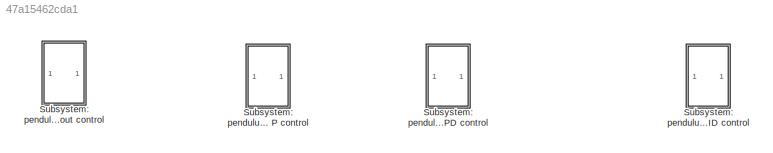
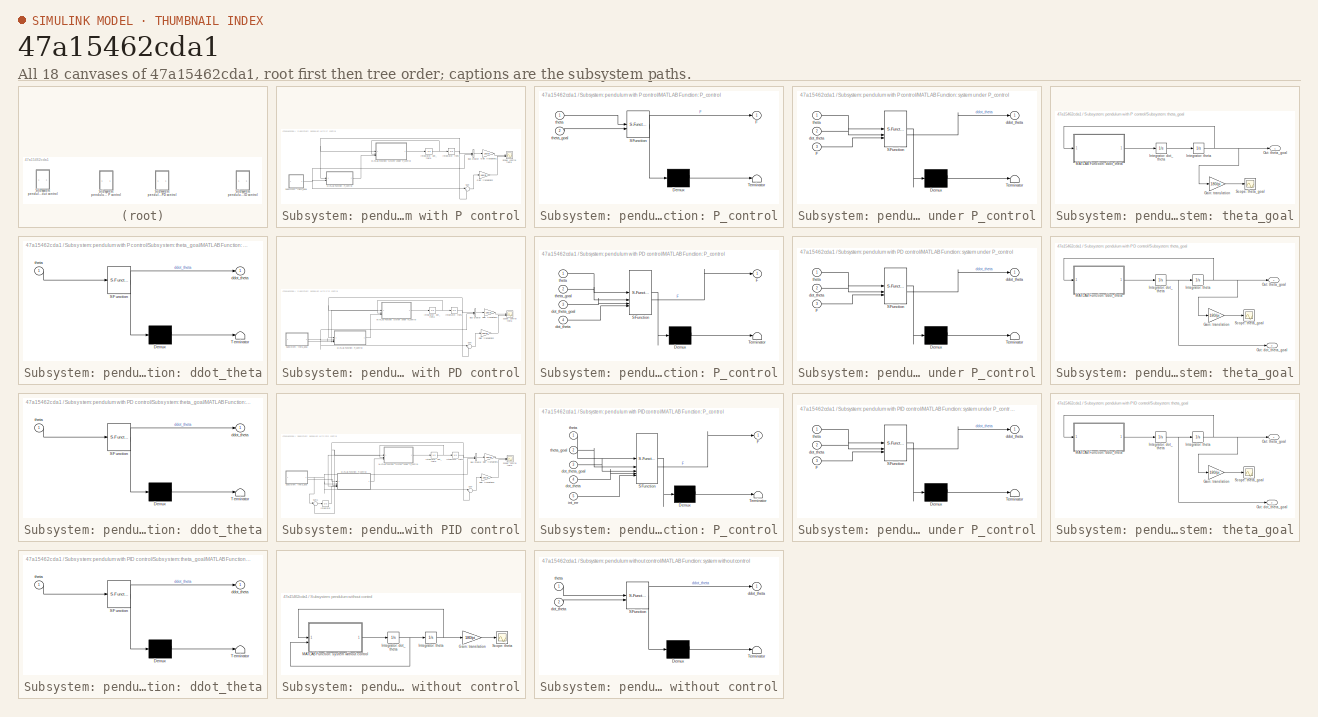
[diagram: thumbnail index - all 18 canvases of the model, root first then tree order]
MODEL slx_47a15462cda1
KIND model
CONFIG AbsTol = auto
CONFIG EnableMultiTasking = off
CONFIG FixedStep = 0.01
CONFIG MaxStep = auto
CONFIG MinStep = auto
CONFIG RelTol = 1e-3
CONFIG SampleTimeConstraint = Unconstrained
CONFIG SolverName = FixedStepAuto
CONFIG StartTime = 0.0
CONFIG StopTime = 10
BLOCK [SubSystem] Subsystem: pendulum with P control
BLOCK [BusCreator] Subsystem: pendulum with P control/Bus Creator
  DisplayOption = bar
  InheritFromInputs = on
  Inputs = 2
BLOCK [Gain] Subsystem: pendulum with P control/Gain: translation1
  Gain = 180/pi
BLOCK [Gain] Subsystem: pendulum with P control/Gain: translation2
  Gain = 180/pi
BLOCK [Integrator] Subsystem: pendulum with P control/Integrator: dot_theta
BLOCK [Integrator] Subsystem: pendulum with P control/Integrator: theta
  InitialCondition = pi/6
BLOCK [SubSystem] Subsystem: pendulum with P control/MATLAB Function: P_control
  ErrorFcn = Stateflow.Translate.translate
  PermitHierarchicalResolution = ExplicitOnly
  SFBlockType = MATLAB Function
  TreatAsAtomicUnit = on
BLOCK [Demux] Subsystem: pendulum with P control/MATLAB Function: P_control/ Demux 
  Outputs = 1
BLOCK [S-Function] Subsystem: pendulum with P control/MATLAB Function: P_control/ SFunction 
  EnableBusSupport = on
  FunctionName = sf_sfun
  PortCounts = [2 2]
  SFcnIsStateOwnerBlock = off
  SFunctionDeploymentMode = off
  Tag = Stateflow S-Function 3
BLOCK [Terminator] Subsystem: pendulum with P control/MATLAB Function: P_control/ Terminator 
BLOCK [Outport] Subsystem: pendulum with P control/MATLAB Function: P_control/F
BLOCK [Inport] Subsystem: pendulum with P control/MATLAB Function: P_control/theta
BLOCK [Inport] Subsystem: pendulum with P control/MATLAB Function: P_control/theta_goal
  Port = 2
BLOCK [SubSystem] Subsystem: pendulum with P control/MATLAB Function: system under P_control
  ErrorFcn = Stateflow.Translate.translate
  PermitHierarchicalResolution = ExplicitOnly
  SFBlockType = MATLAB Function
  TreatAsAtomicUnit = on
BLOCK [Demux] Subsystem: pendulum with P control/MATLAB Function: system under P_control/ Demux 
  Outputs = 1
BLOCK [S-Function] Subsystem: pendulum with P control/MATLAB Function: system under P_control/ SFunction 
  EnableBusSupport = on
  FunctionName = sf_sfun
  PortCounts = [3 2]
  SFcnIsStateOwnerBlock = off
  SFunctionDeploymentMode = off
  Tag = Stateflow S-Function 2
BLOCK [Terminator] Subsystem: pendulum with P control/MATLAB Function: system under P_control/ Terminator 
BLOCK [Inport] Subsystem: pendulum with P control/MATLAB Function: system under P_control/F
  Port = 3
BLOCK [Outport] Subsystem: pendulum with P control/MATLAB Function: system under P_control/ddot_theta
BLOCK [Inport] Subsystem: pendulum with P control/MATLAB Function: system under P_control/dot_theta
  Port = 2
BLOCK [Inport] Subsystem: pendulum with P control/MATLAB Function: system under P_control/theta
BLOCK [Scope] Subsystem: pendulum with P control/Scope: control theta
  Floating = off
  NumInputPorts = 2
  ScopeSpecificationString = Simulink.scopes.TimeScopeBlockCfg('CurrentConfiguration', extmgr.ConfigurationSet(extmgr.Configuration('Core','General UI',true),extmgr.Configuration('Core','Source UI',true),extmgr.Configuration('Sources','WiredSimulink',true),extmgr.Configuration('Visuals','Time Domain',true,'SerializedDisplays',{struct('MinYLimReal','-37.49943','MaxYLimReal','37.49994','YLabelReal','','MinYLimMag','0.00000','Ma...<+2094ch>
BLOCK [SubSystem] Subsystem: pendulum with P control/Subsystem: theta_goal
BLOCK [Gain] Subsystem: pendulum with P control/Subsystem: theta_goal/Gain: translation
  Gain = 180/pi
BLOCK [Integrator] Subsystem: pendulum with P control/Subsystem: theta_goal/Integrator: dot_theta
BLOCK [Integrator] Subsystem: pendulum with P control/Subsystem: theta_goal/Integrator: theta
  InitialCondition = pi/6
BLOCK [SubSystem] Subsystem: pendulum with P control/Subsystem: theta_goal/MATLAB Function: ddot_theta
  ErrorFcn = Stateflow.Translate.translate
  PermitHierarchicalResolution = ExplicitOnly
  SFBlockType = MATLAB Function
  TreatAsAtomicUnit = on
BLOCK [Demux] Subsystem: pendulum with P control/Subsystem: theta_goal/MATLAB Function: ddot_theta/ Demux 
  Outputs = 1
BLOCK [S-Function] Subsystem: pendulum with P control/Subsystem: theta_goal/MATLAB Function: ddot_theta/ SFunction 
  EnableBusSupport = on
  FunctionName = sf_sfun
  PortCounts = [1 2]
  SFcnIsStateOwnerBlock = off
  SFunctionDeploymentMode = off
  Tag = Stateflow S-Function 1
BLOCK [Terminator] Subsystem: pendulum with P control/Subsystem: theta_goal/MATLAB Function: ddot_theta/ Terminator 
BLOCK [Outport] Subsystem: pendulum with P control/Subsystem: theta_goal/MATLAB Function: ddot_theta/ddot_theta
BLOCK [Inport] Subsystem: pendulum with P control/Subsystem: theta_goal/MATLAB Function: ddot_theta/theta
BLOCK [Outport] Subsystem: pendulum with P control/Subsystem: theta_goal/Out: theta_goal
BLOCK [Scope] Subsystem: pendulum with P control/Subsystem: theta_goal/Scope: theta_goal
  Floating = off
  NumInputPorts = 1
  ScopeSpecificationString = Simulink.scopes.TimeScopeBlockCfg('CurrentConfiguration', extmgr.ConfigurationSet(extmgr.Configuration('Core','General UI',true),extmgr.Configuration('Core','Source UI',true),extmgr.Configuration('Sources','WiredSimulink',true,'DataLoggingVariableName','ScopeData1'),extmgr.Configuration('Visuals','Time Domain',true,'SerializedDisplays',{struct('MinYLimReal','-37.49943','MaxYLimReal','37.49994','YL...<+1398ch>  <repeated x3 — deduplicated; at blocks: Scope: theta_goal>
BLOCK [Sum] Subsystem: pendulum with P control/Sum
  Inputs = |+-
BLOCK [SubSystem] Subsystem: pendulum with PD control
BLOCK [BusCreator] Subsystem: pendulum with PD control/Bus Creator
  DisplayOption = bar
  InheritFromInputs = on
  Inputs = 2
BLOCK [Gain] Subsystem: pendulum with PD control/Gain: translation1
  Gain = 180/pi
BLOCK [Gain] Subsystem: pendulum with PD control/Gain: translation2
  Gain = 180/pi
BLOCK [Integrator] Subsystem: pendulum with PD control/Integrator: dot_theta
BLOCK [Integrator] Subsystem: pendulum with PD control/Integrator: theta
  InitialCondition = pi/6
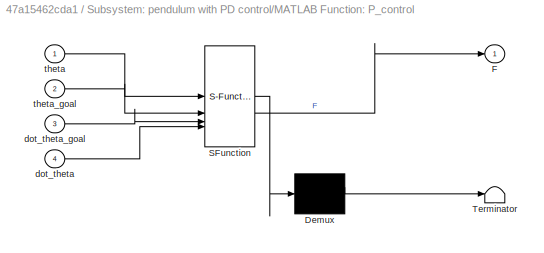
BLOCK [SubSystem] Subsystem: pendulum with PD control/MATLAB Function: P_control
  ErrorFcn = Stateflow.Translate.translate
  PermitHierarchicalResolution = ExplicitOnly
  SFBlockType = MATLAB Function
  TreatAsAtomicUnit = on
BLOCK [Demux] Subsystem: pendulum with PD control/MATLAB Function: P_control/ Demux 
  Outputs = 1
BLOCK [S-Function] Subsystem: pendulum with PD control/MATLAB Function: P_control/ SFunction 
  EnableBusSupport = on
  FunctionName = sf_sfun
  PortCounts = [4 2]
  SFcnIsStateOwnerBlock = off
  SFunctionDeploymentMode = off
  Tag = Stateflow S-Function 5
BLOCK [Terminator] Subsystem: pendulum with PD control/MATLAB Function: P_control/ Terminator 
BLOCK [Outport] Subsystem: pendulum with PD control/MATLAB Function: P_control/F
BLOCK [Inport] Subsystem: pendulum with PD control/MATLAB Function: P_control/dot_theta
  Port = 4
BLOCK [Inport] Subsystem: pendulum with PD control/MATLAB Function: P_control/dot_theta_goal
  Port = 3
BLOCK [Inport] Subsystem: pendulum with PD control/MATLAB Function: P_control/theta
BLOCK [Inport] Subsystem: pendulum with PD control/MATLAB Function: P_control/theta_goal
  Port = 2
BLOCK [SubSystem] Subsystem: pendulum with PD control/MATLAB Function: system under P_control
  ErrorFcn = Stateflow.Translate.translate
  PermitHierarchicalResolution = ExplicitOnly
  SFBlockType = MATLAB Function
  TreatAsAtomicUnit = on
BLOCK [Demux] Subsystem: pendulum with PD control/MATLAB Function: system under P_control/ Demux 
  Outputs = 1
BLOCK [S-Function] Subsystem: pendulum with PD control/MATLAB Function: system under P_control/ SFunction 
  EnableBusSupport = on
  FunctionName = sf_sfun
  PortCounts = [3 2]
  SFcnIsStateOwnerBlock = off
  SFunctionDeploymentMode = off
  Tag = Stateflow S-Function 6
BLOCK [Terminator] Subsystem: pendulum with PD control/MATLAB Function: system under P_control/ Terminator 
BLOCK [Inport] Subsystem: pendulum with PD control/MATLAB Function: system under P_control/F
  Port = 3
BLOCK [Outport] Subsystem: pendulum with PD control/MATLAB Function: system under P_control/ddot_theta
BLOCK [Inport] Subsystem: pendulum with PD control/MATLAB Function: system under P_control/dot_theta
  Port = 2
BLOCK [Inport] Subsystem: pendulum with PD control/MATLAB Function: system under P_control/theta
BLOCK [Scope] Subsystem: pendulum with PD control/Scope: control theta
  Floating = off
  NumInputPorts = 2
  ScopeSpecificationString = Simulink.scopes.TimeScopeBlockCfg('CurrentConfiguration', extmgr.ConfigurationSet(extmgr.Configuration('Core','General UI',true),extmgr.Configuration('Core','Source UI',true),extmgr.Configuration('Sources','WiredSimulink',true),extmgr.Configuration('Visuals','Time Domain',true,'SerializedDisplays',{struct('MinYLimReal','-74.99886','MaxYLimReal','74.99987','YLabelReal','','MinYLimMag','0.00000','Ma...<+2095ch>
BLOCK [SubSystem] Subsystem: pendulum with PD control/Subsystem: theta_goal
BLOCK [Gain] Subsystem: pendulum with PD control/Subsystem: theta_goal/Gain: translation
  Gain = 180/pi
BLOCK [Integrator] Subsystem: pendulum with PD control/Subsystem: theta_goal/Integrator: dot_theta
BLOCK [Integrator] Subsystem: pendulum with PD control/Subsystem: theta_goal/Integrator: theta
  InitialCondition = pi/3
BLOCK [SubSystem] Subsystem: pendulum with PD control/Subsystem: theta_goal/MATLAB Function: ddot_theta
  ErrorFcn = Stateflow.Translate.translate
  PermitHierarchicalResolution = ExplicitOnly
  SFBlockType = MATLAB Function
  TreatAsAtomicUnit = on
BLOCK [Demux] Subsystem: pendulum with PD control/Subsystem: theta_goal/MATLAB Function: ddot_theta/ Demux 
  Outputs = 1
BLOCK [S-Function] Subsystem: pendulum with PD control/Subsystem: theta_goal/MATLAB Function: ddot_theta/ SFunction 
  EnableBusSupport = on
  FunctionName = sf_sfun
  PortCounts = [1 2]
  SFcnIsStateOwnerBlock = off
  SFunctionDeploymentMode = off
  Tag = Stateflow S-Function 7
BLOCK [Terminator] Subsystem: pendulum with PD control/Subsystem: theta_goal/MATLAB Function: ddot_theta/ Terminator 
BLOCK [Outport] Subsystem: pendulum with PD control/Subsystem: theta_goal/MATLAB Function: ddot_theta/ddot_theta
BLOCK [Inport] Subsystem: pendulum with PD control/Subsystem: theta_goal/MATLAB Function: ddot_theta/theta
BLOCK [Outport] Subsystem: pendulum with PD control/Subsystem: theta_goal/Out: dot_theta_goal
  Port = 2
BLOCK [Outport] Subsystem: pendulum with PD control/Subsystem: theta_goal/Out: theta_goal
BLOCK [Scope] Subsystem: pendulum with PD control/Subsystem: theta_goal/Scope: theta_goal
  Floating = off
  NumInputPorts = 1
BLOCK [Sum] Subsystem: pendulum with PD control/Sum
  Inputs = |+-
BLOCK [SubSystem] Subsystem: pendulum with PID control
BLOCK [BusCreator] Subsystem: pendulum with PID control/Bus Creator
  DisplayOption = bar
  InheritFromInputs = on
  Inputs = 2
BLOCK [Gain] Subsystem: pendulum with PID control/Gain: translation1
  Gain = 180/pi
BLOCK [Gain] Subsystem: pendulum with PID control/Gain: translation2
  Gain = 180/pi
BLOCK [Integrator] Subsystem: pendulum with PID control/Integrator
BLOCK [Integrator] Subsystem: pendulum with PID control/Integrator: dot_theta
BLOCK [Integrator] Subsystem: pendulum with PID control/Integrator: theta
  InitialCondition = pi/6
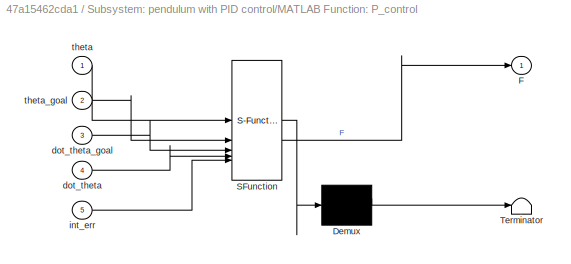
BLOCK [SubSystem] Subsystem: pendulum with PID control/MATLAB Function: P_control
  ErrorFcn = Stateflow.Translate.translate
  PermitHierarchicalResolution = ExplicitOnly
  SFBlockType = MATLAB Function
  TreatAsAtomicUnit = on
BLOCK [Demux] Subsystem: pendulum with PID control/MATLAB Function: P_control/ Demux 
  Outputs = 1
BLOCK [S-Function] Subsystem: pendulum with PID control/MATLAB Function: P_control/ SFunction 
  EnableBusSupport = on
  FunctionName = sf_sfun
  PortCounts = [5 2]
  SFcnIsStateOwnerBlock = off
  SFunctionDeploymentMode = off
  Tag = Stateflow S-Function 8
BLOCK [Terminator] Subsystem: pendulum with PID control/MATLAB Function: P_control/ Terminator 
BLOCK [Outport] Subsystem: pendulum with PID control/MATLAB Function: P_control/F
BLOCK [Inport] Subsystem: pendulum with PID control/MATLAB Function: P_control/dot_theta
  Port = 4
BLOCK [Inport] Subsystem: pendulum with PID control/MATLAB Function: P_control/dot_theta_goal
  Port = 3
BLOCK [Inport] Subsystem: pendulum with PID control/MATLAB Function: P_control/int_err
  Port = 5
BLOCK [Inport] Subsystem: pendulum with PID control/MATLAB Function: P_control/theta
BLOCK [Inport] Subsystem: pendulum with PID control/MATLAB Function: P_control/theta_goal
  Port = 2
BLOCK [SubSystem] Subsystem: pendulum with PID control/MATLAB Function: system under P_control
  ErrorFcn = Stateflow.Translate.translate
  PermitHierarchicalResolution = ExplicitOnly
  SFBlockType = MATLAB Function
  TreatAsAtomicUnit = on
BLOCK [Demux] Subsystem: pendulum with PID control/MATLAB Function: system under P_control/ Demux 
  Outputs = 1
BLOCK [S-Function] Subsystem: pendulum with PID control/MATLAB Function: system under P_control/ SFunction 
  EnableBusSupport = on
  FunctionName = sf_sfun
  PortCounts = [3 2]
  SFcnIsStateOwnerBlock = off
  SFunctionDeploymentMode = off
  Tag = Stateflow S-Function 9
BLOCK [Terminator] Subsystem: pendulum with PID control/MATLAB Function: system under P_control/ Terminator 
BLOCK [Inport] Subsystem: pendulum with PID control/MATLAB Function: system under P_control/F
  Port = 3
BLOCK [Outport] Subsystem: pendulum with PID control/MATLAB Function: system under P_control/ddot_theta
BLOCK [Inport] Subsystem: pendulum with PID control/MATLAB Function: system under P_control/dot_theta
  Port = 2
BLOCK [Inport] Subsystem: pendulum with PID control/MATLAB Function: system under P_control/theta
BLOCK [Scope] Subsystem: pendulum with PID control/Scope: control theta
  Floating = off
  NumInputPorts = 2
  ScopeSpecificationString = Simulink.scopes.TimeScopeBlockCfg('CurrentConfiguration', extmgr.ConfigurationSet(extmgr.Configuration('Core','General UI',true),extmgr.Configuration('Core','Source UI',true),extmgr.Configuration('Sources','WiredSimulink',true),extmgr.Configuration('Visuals','Time Domain',true,'SerializedDisplays',{struct('MinYLimReal','-32.67808','MaxYLimReal','36.96423','YLabelReal','','MinYLimMag','0.00000','Ma...<+2095ch>
BLOCK [SubSystem] Subsystem: pendulum with PID control/Subsystem: theta_goal
BLOCK [Gain] Subsystem: pendulum with PID control/Subsystem: theta_goal/Gain: translation
  Gain = 180/pi
BLOCK [Integrator] Subsystem: pendulum with PID control/Subsystem: theta_goal/Integrator: dot_theta
BLOCK [Integrator] Subsystem: pendulum with PID control/Subsystem: theta_goal/Integrator: theta
  InitialCondition = pi/7
BLOCK [SubSystem] Subsystem: pendulum with PID control/Subsystem: theta_goal/MATLAB Function: ddot_theta
  ErrorFcn = Stateflow.Translate.translate
  PermitHierarchicalResolution = ExplicitOnly
  SFBlockType = MATLAB Function
  TreatAsAtomicUnit = on
BLOCK [Demux] Subsystem: pendulum with PID control/Subsystem: theta_goal/MATLAB Function: ddot_theta/ Demux 
  Outputs = 1
BLOCK [S-Function] Subsystem: pendulum with PID control/Subsystem: theta_goal/MATLAB Function: ddot_theta/ SFunction 
  EnableBusSupport = on
  FunctionName = sf_sfun
  PortCounts = [1 2]
  SFcnIsStateOwnerBlock = off
  SFunctionDeploymentMode = off
  Tag = Stateflow S-Function 10
BLOCK [Terminator] Subsystem: pendulum with PID control/Subsystem: theta_goal/MATLAB Function: ddot_theta/ Terminator 
BLOCK [Outport] Subsystem: pendulum with PID control/Subsystem: theta_goal/MATLAB Function: ddot_theta/ddot_theta
BLOCK [Inport] Subsystem: pendulum with PID control/Subsystem: theta_goal/MATLAB Function: ddot_theta/theta
BLOCK [Outport] Subsystem: pendulum with PID control/Subsystem: theta_goal/Out: dot_theta_goal
  Port = 2
BLOCK [Outport] Subsystem: pendulum with PID control/Subsystem: theta_goal/Out: theta_goal
BLOCK [Scope] Subsystem: pendulum with PID control/Subsystem: theta_goal/Scope: theta_goal
  Floating = off
  NumInputPorts = 1
BLOCK [Sum] Subsystem: pendulum with PID control/Sum
  Inputs = |+-
BLOCK [Sum] Subsystem: pendulum with PID control/Sum1
  Inputs = |+-
BLOCK [SubSystem] Subsystem: pendulum without control
BLOCK [Gain] Subsystem: pendulum without control/Gain: translation
  Gain = 180/pi
BLOCK [Integrator] Subsystem: pendulum without control/Integrator: dot_theta
BLOCK [Integrator] Subsystem: pendulum without control/Integrator: theta
  InitialCondition = pi/6
BLOCK [SubSystem] Subsystem: pendulum without control/MATLAB Function: system without control
  ErrorFcn = Stateflow.Translate.translate
  PermitHierarchicalResolution = ExplicitOnly
  SFBlockType = MATLAB Function
  TreatAsAtomicUnit = on
BLOCK [Demux] Subsystem: pendulum without control/MATLAB Function: system without control/ Demux 
  Outputs = 1
BLOCK [S-Function] Subsystem: pendulum without control/MATLAB Function: system without control/ SFunction 
  EnableBusSupport = on
  FunctionName = sf_sfun
  PortCounts = [2 2]
  SFcnIsStateOwnerBlock = off
  SFunctionDeploymentMode = off
  Tag = Stateflow S-Function 4
BLOCK [Terminator] Subsystem: pendulum without control/MATLAB Function: system without control/ Terminator 
BLOCK [Outport] Subsystem: pendulum without control/MATLAB Function: system without control/ddot_theta
BLOCK [Inport] Subsystem: pendulum without control/MATLAB Function: system without control/dot_theta
  Port = 2
BLOCK [Inport] Subsystem: pendulum without control/MATLAB Function: system without control/theta
BLOCK [Scope] Subsystem: pendulum without control/Scope: theta
  Floating = off
  NumInputPorts = 1
  ScopeSpecificationString = Simulink.scopes.TimeScopeBlockCfg('CurrentConfiguration', extmgr.ConfigurationSet(extmgr.Configuration('Core','General UI',true),extmgr.Configuration('Core','Source UI',true),extmgr.Configuration('Sources','WiredSimulink',true,'DataLoggingVariableName','ScopeData1'),extmgr.Configuration('Visuals','Time Domain',true,'SerializedDisplays',{struct('MinYLimReal','-27.36588','MaxYLimReal','36.37399','YL...<+1411ch>
LINE Subsystem: pendulum with P control/Bus Creator:1 -> Subsystem: pendulum with P control/Gain: translation1:1
LINE Subsystem: pendulum with P control/Gain: translation1:1 -> Subsystem: pendulum with P control/Scope: control theta:1
LINE Subsystem: pendulum with P control/Gain: translation2:1 -> Subsystem: pendulum with P control/Scope: control theta:2
NET Subsystem: pendulum with P control/Integrator: dot_theta:1 -> Subsystem: pendulum with P control/Integrator: theta:1, Subsystem: pendulum with P control/MATLAB Function: system under P_control:2
NET Subsystem: pendulum with P control/Integrator: theta:1 -> Subsystem: pendulum with P control/Bus Creator:1, Subsystem: pendulum with P control/MATLAB Function: P_control:1, Subsystem: pendulum with P control/MATLAB Function: system under P_control:1, Subsystem: pendulum with P control/Sum:2
LINE Subsystem: pendulum with P control/MATLAB Function: P_control:1 -> Subsystem: pendulum with P control/MATLAB Function: system under P_control:3
LINE Subsystem: pendulum with P control/MATLAB Function: system under P_control:1 -> Subsystem: pendulum with P control/Integrator: dot_theta:1
LINE Subsystem: pendulum with P control/Subsystem: theta_goal/Gain: translation:1 -> Subsystem: pendulum with P control/Subsystem: theta_goal/Scope: theta_goal:1
LINE Subsystem: pendulum with P control/Subsystem: theta_goal/Integrator: dot_theta:1 -> Subsystem: pendulum with P control/Subsystem: theta_goal/Integrator: theta:1
NET Subsystem: pendulum with P control/Subsystem: theta_goal/Integrator: theta:1 -> Subsystem: pendulum with P control/Subsystem: theta_goal/Gain: translation:1, Subsystem: pendulum with P control/Subsystem: theta_goal/MATLAB Function: ddot_theta:1, Subsystem: pendulum with P control/Subsystem: theta_goal/Out: theta_goal:1
LINE Subsystem: pendulum with P control/Subsystem: theta_goal/MATLAB Function: ddot_theta:1 -> Subsystem: pendulum with P control/Subsystem: theta_goal/Integrator: dot_theta:1
NET Subsystem: pendulum with P control/Subsystem: theta_goal:1 -> Subsystem: pendulum with P control/Bus Creator:2, Subsystem: pendulum with P control/MATLAB Function: P_control:2, Subsystem: pendulum with P control/Sum:1
LINE Subsystem: pendulum with P control/Sum:1 -> Subsystem: pendulum with P control/Gain: translation2:1
LINE Subsystem: pendulum with PD control/Bus Creator:1 -> Subsystem: pendulum with PD control/Gain: translation1:1
LINE Subsystem: pendulum with PD control/Gain: translation1:1 -> Subsystem: pendulum with PD control/Scope: control theta:1
LINE Subsystem: pendulum with PD control/Gain: translation2:1 -> Subsystem: pendulum with PD control/Scope: control theta:2
NET Subsystem: pendulum with PD control/Integrator: dot_theta:1 -> Subsystem: pendulum with PD control/Integrator: theta:1, Subsystem: pendulum with PD control/MATLAB Function: P_control:4, Subsystem: pendulum with PD control/MATLAB Function: system under P_control:2
NET Subsystem: pendulum with PD control/Integrator: theta:1 -> Subsystem: pendulum with PD control/Bus Creator:1, Subsystem: pendulum with PD control/MATLAB Function: P_control:1, Subsystem: pendulum with PD control/MATLAB Function: system under P_control:1, Subsystem: pendulum with PD control/Sum:2
LINE Subsystem: pendulum with PD control/MATLAB Function: P_control:1 -> Subsystem: pendulum with PD control/MATLAB Function: system under P_control:3
LINE Subsystem: pendulum with PD control/MATLAB Function: system under P_control:1 -> Subsystem: pendulum with PD control/Integrator: dot_theta:1
LINE Subsystem: pendulum with PD control/Subsystem: theta_goal/Gain: translation:1 -> Subsystem: pendulum with PD control/Subsystem: theta_goal/Scope: theta_goal:1
NET Subsystem: pendulum with PD control/Subsystem: theta_goal/Integrator: dot_theta:1 -> Subsystem: pendulum with PD control/Subsystem: theta_goal/Integrator: theta:1, Subsystem: pendulum with PD control/Subsystem: theta_goal/Out: dot_theta_goal:1
NET Subsystem: pendulum with PD control/Subsystem: theta_goal/Integrator: theta:1 -> Subsystem: pendulum with PD control/Subsystem: theta_goal/Gain: translation:1, Subsystem: pendulum with PD control/Subsystem: theta_goal/MATLAB Function: ddot_theta:1, Subsystem: pendulum with PD control/Subsystem: theta_goal/Out: theta_goal:1
LINE Subsystem: pendulum with PD control/Subsystem: theta_goal/MATLAB Function: ddot_theta:1 -> Subsystem: pendulum with PD control/Subsystem: theta_goal/Integrator: dot_theta:1
NET Subsystem: pendulum with PD control/Subsystem: theta_goal:1 -> Subsystem: pendulum with PD control/Bus Creator:2, Subsystem: pendulum with PD control/MATLAB Function: P_control:2, Subsystem: pendulum with PD control/Sum:1
LINE Subsystem: pendulum with PD control/Subsystem: theta_goal:2 -> Subsystem: pendulum with PD control/MATLAB Function: P_control:3
LINE Subsystem: pendulum with PD control/Sum:1 -> Subsystem: pendulum with PD control/Gain: translation2:1
LINE Subsystem: pendulum with PID control/Bus Creator:1 -> Subsystem: pendulum with PID control/Gain: translation1:1
LINE Subsystem: pendulum with PID control/Gain: translation1:1 -> Subsystem: pendulum with PID control/Scope: control theta:1
LINE Subsystem: pendulum with PID control/Gain: translation2:1 -> Subsystem: pendulum with PID control/Scope: control theta:2
NET Subsystem: pendulum with PID control/Integrator: dot_theta:1 -> Subsystem: pendulum with PID control/Integrator: theta:1, Subsystem: pendulum with PID control/MATLAB Function: P_control:4, Subsystem: pendulum with PID control/MATLAB Function: system under P_control:2
NET Subsystem: pendulum with PID control/Integrator: theta:1 -> Subsystem: pendulum with PID control/Bus Creator:1, Subsystem: pendulum with PID control/MATLAB Function: P_control:1, Subsystem: pendulum with PID control/MATLAB Function: system under P_control:1, Subsystem: pendulum with PID control/Sum1:2, Subsystem: pendulum with PID control/Sum:2
LINE Subsystem: pendulum with PID control/Integrator:1 -> Subsystem: pendulum with PID control/MATLAB Function: P_control:5
LINE Subsystem: pendulum with PID control/MATLAB Function: P_control:1 -> Subsystem: pendulum with PID control/MATLAB Function: system under P_control:3
LINE Subsystem: pendulum with PID control/MATLAB Function: system under P_control:1 -> Subsystem: pendulum with PID control/Integrator: dot_theta:1
LINE Subsystem: pendulum with PID control/Subsystem: theta_goal/Gain: translation:1 -> Subsystem: pendulum with PID control/Subsystem: theta_goal/Scope: theta_goal:1
NET Subsystem: pendulum with PID control/Subsystem: theta_goal/Integrator: dot_theta:1 -> Subsystem: pendulum with PID control/Subsystem: theta_goal/Integrator: theta:1, Subsystem: pendulum with PID control/Subsystem: theta_goal/Out: dot_theta_goal:1
NET Subsystem: pendulum with PID control/Subsystem: theta_goal/Integrator: theta:1 -> Subsystem: pendulum with PID control/Subsystem: theta_goal/Gain: translation:1, Subsystem: pendulum with PID control/Subsystem: theta_goal/MATLAB Function: ddot_theta:1, Subsystem: pendulum with PID control/Subsystem: theta_goal/Out: theta_goal:1
LINE Subsystem: pendulum with PID control/Subsystem: theta_goal/MATLAB Function: ddot_theta:1 -> Subsystem: pendulum with PID control/Subsystem: theta_goal/Integrator: dot_theta:1
NET Subsystem: pendulum with PID control/Subsystem: theta_goal:1 -> Subsystem: pendulum with PID control/Bus Creator:2, Subsystem: pendulum with PID control/MATLAB Function: P_control:2, Subsystem: pendulum with PID control/Sum1:1, Subsystem: pendulum with PID control/Sum:1
LINE Subsystem: pendulum with PID control/Subsystem: theta_goal:2 -> Subsystem: pendulum with PID control/MATLAB Function: P_control:3
LINE Subsystem: pendulum with PID control/Sum1:1 -> Subsystem: pendulum with PID control/Integrator:1
LINE Subsystem: pendulum with PID control/Sum:1 -> Subsystem: pendulum with PID control/Gain: translation2:1
LINE Subsystem: pendulum without control/Gain: translation:1 -> Subsystem: pendulum without control/Scope: theta:1
NET Subsystem: pendulum without control/Integrator: dot_theta:1 -> Subsystem: pendulum without control/Integrator: theta:1, Subsystem: pendulum without control/MATLAB Function: system without control:2
NET Subsystem: pendulum without control/Integrator: theta:1 -> Subsystem: pendulum without control/Gain: translation:1, Subsystem: pendulum without control/MATLAB Function: system without control:1
LINE Subsystem: pendulum without control/MATLAB Function: system without control:1 -> Subsystem: pendulum without control/Integrator: dot_theta:1
note: NET lines group one-source signal fan-out (src -> all destinations, sorted); 1:1 wires keep LINE
CHART Subsystem: pendulum with P control/Subsystem: theta_goal/MATLAB Function: ddot_theta states=1 transitions=1
  STATE_LABEL 'eML_blk_kernel()'
  STATE_LABEL 'SCRIPT:\nfunction ddot_theta = fcn(theta)\ng=9.81;\nR=0.5;\nddot_theta = -g/R*theta;\n'
CHART Subsystem: pendulum with P control/MATLAB Function: system under P_control states=1 transitions=1
  STATE_LABEL 'eML_blk_kernel()'
  STATE_LABEL 'SCRIPT:\nfunction ddot_theta = fcn(theta,dot_theta,F)\ng=9.81;\nR=0.5;\nc=0.1;\nm=0.1;\nddot_theta = -g/R*theta-c/m*dot_theta+F/(m*R);\n'
CHART Subsystem: pendulum with P control/MATLAB Function: P_control states=1 transitions=1
  STATE_LABEL 'eML_blk_kernel()'
  STATE_LABEL 'SCRIPT:\nfunction F = fcn(theta,theta_goal)\nkp=8;\nF = (theta_goal-theta)*kp;\n\n'
CHART Subsystem: pendulum without control/MATLAB Function: system without control states=1 transitions=1
  STATE_LABEL 'eML_blk_kernel()'
  STATE_LABEL 'SCRIPT:\nfunction ddot_theta = fcn(theta,dot_theta)\ng=9.81;\nR=0.5;\nc=0.1;\nm=0.1;\nddot_theta = -g/R*theta-c/m*dot_theta;\n'
CHART Subsystem: pendulum with PD control/MATLAB Function: P_control states=1 transitions=1
  STATE_LABEL 'eML_blk_kernel()'
  STATE_LABEL 'SCRIPT:\nfunction F = fcn(theta,theta_goal,dot_theta_goal,dot_theta)\nkp=2;\nkd=0.5;\nerr=theta_goal-theta;\ndot_err=dot_theta_goal-dot_theta;\nF = err*kp+dot_err*kd;\n\n'
CHART Subsystem: pendulum with PD control/MATLAB Function: system under P_control states=1 transitions=1
  STATE_LABEL 'eML_blk_kernel()'
  STATE_LABEL 'SCRIPT:\nfunction ddot_theta = fcn(theta,dot_theta,F)\ng=9.81;\nR=0.5;\nc=0.01;\nm=0.1;\nddot_theta = -g/R*theta-c/m*dot_theta+F/(m*R);\n'
CHART Subsystem: pendulum with PD control/Subsystem: theta_goal/MATLAB Function: ddot_theta states=1 transitions=1
  STATE_LABEL 'eML_blk_kernel()'
  STATE_LABEL 'SCRIPT:\nfunction ddot_theta = fcn(theta)\ng=9.81;\nR=0.5;\nddot_theta = -g/R*theta;\n'
CHART Subsystem: pendulum with PID control/MATLAB Function: P_control states=1 transitions=1
  STATE_LABEL 'eML_blk_kernel()'
  STATE_LABEL 'SCRIPT:\nfunction F = fcn(theta,theta_goal,dot_theta_goal,dot_theta,int_err)\nkp=8;\nkd=1;\nki=5;\nerr=theta_goal-theta;\ndot_err=dot_theta_goal-dot_theta;\nF = err*kp+dot_err*kd+int_err*ki;\n\n'
CHART Subsystem: pendulum with PID control/MATLAB Function: system under P_control states=1 transitions=1
  STATE_LABEL 'eML_blk_kernel()'
  STATE_LABEL 'SCRIPT:\nfunction ddot_theta = fcn(theta,dot_theta,F)\ng=9.81;\nR=0.5;\nc=0.01;\nm=0.1;\ndis=1;\nddot_theta = -g/R*theta-c/m*dot_theta+F/(m*R)+dis;\n'
CHART Subsystem: pendulum with PID control/Subsystem: theta_goal/MATLAB Function: ddot_theta states=1 transitions=1
  STATE_LABEL 'eML_blk_kernel()'
  STATE_LABEL 'SCRIPT:\nfunction ddot_theta = fcn(theta)\ng=9.81;\nR=0.5;\nddot_theta = -g/R*theta;\n'
CHART  states=0 transitions=0
CHART  states=0 transitions=0
CHART  states=0 transitions=0
CHART  states=0 transitions=0
CHART  states=0 transitions=0
CHART  states=0 transitions=0
CHART  states=0 transitions=0
CHART  states=0 transitions=0
CHART  states=0 transitions=0
CHART  states=0 transitions=0
